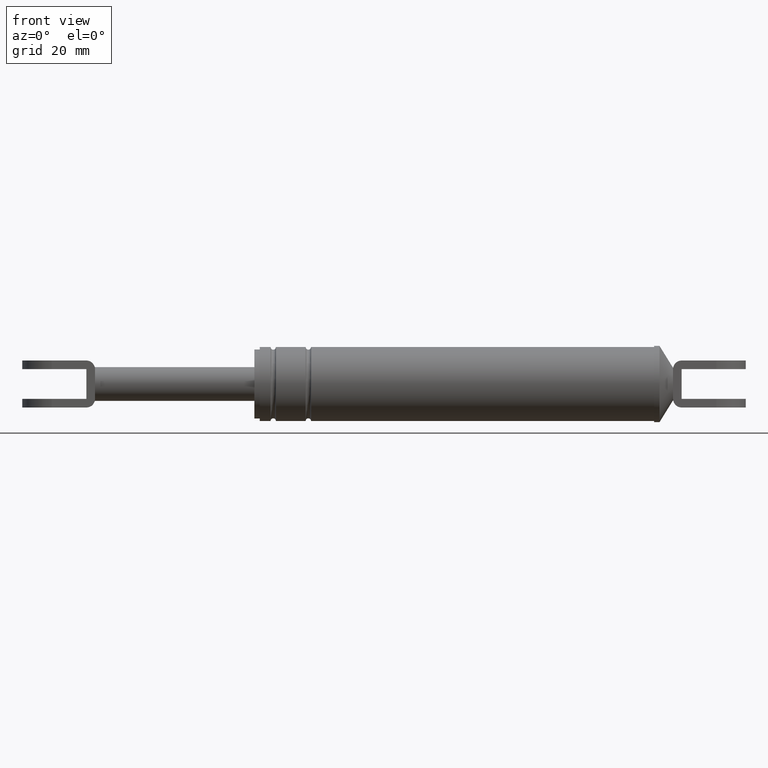
[diagram: clean part render]
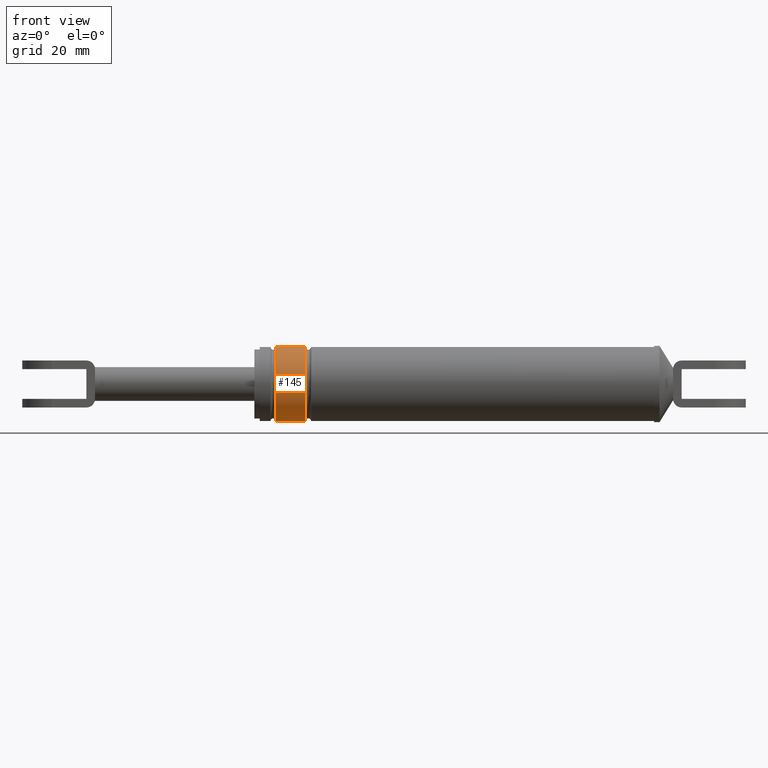
[diagram: same view with one face highlighted and labeled with its STEP entity id]
A machine part, front view. The second image highlights one B-rep face of the part: STEP entity #145.
In plain terms, the highlighted cylindrical surface (partial cylindrical patch) has radius 13.7 mm, axis along (-1, 0, 0).
Its self-contained STEP definition (entity closure, byte-faithful):
#145=ADVANCED_FACE('',(#513),#512,.T.);
#512=CYLINDRICAL_SURFACE('',#1482,1.37000000000E+001);
#513=FACE_OUTER_BOUND('',#1483,.T.);
#1479=CARTESIAN_POINT('',(1.71231797029E+002,6.37158320696E-015,1.19820542859E+002));
#1480=DIRECTION('',(-1.00000000000E+000,1.46694769862E-015,3.54452212500E-031));
#1481=DIRECTION('',(1.03669887834E-030,4.65079066202E-016,1.00000000000E+000));
#1482=AXIS2_PLACEMENT_3D('',#1479,#1480,#1481);
#1483=EDGE_LOOP('',(#2129,#2130,#2131,#2132));
#2129=ORIENTED_EDGE('',*,*,#2366,.T.);
#2130=ORIENTED_EDGE('',*,*,#2363,.T.);
#2131=ORIENTED_EDGE('',*,*,#2362,.F.);
#2132=ORIENTED_EDGE('',*,*,#2365,.F.);
#2362=EDGE_CURVE('',#2964,#2957,#2977,.T.);
#2363=EDGE_CURVE('',#2983,#2957,#2984,.T.);
#2365=EDGE_CURVE('',#2990,#2964,#2997,.T.);
#2366=EDGE_CURVE('',#2990,#2983,#3003,.T.);
#2957=VERTEX_POINT('',#3801);
#2964=VERTEX_POINT('',#3807);
#2977=CIRCLE('',#3822,1.37000000000E+001);
#2983=VERTEX_POINT('',#3823);
#2984=(BOUNDED_CURVE() B_SPLINE_CURVE(1,(#3824,#3825),.UNSPECIFIED.,.F.,.F.) B_SPLINE_CURVE_WITH_KNOTS((2,2),(8.33333343261E-002,9.16666667006E-001),.UNSPECIFIED.) CURVE() GEOMETRIC_REPRESENTATION_ITEM() RATIONAL_B_SPLINE_CURVE((1.00000000000E+000,1.00000000000E+000)) REPRESENTATION_ITEM('') );
#2990=VERTEX_POINT('',#3826);
#2997=(BOUNDED_CURVE() B_SPLINE_CURVE(1,(#3831,#3832),.UNSPECIFIED.,.F.,.F.) B_SPLINE_CURVE_WITH_KNOTS((2,2),(8.33333333333E-002,9.16666666667E-001),.UNSPECIFIED.) CURVE() GEOMETRIC_REPRESENTATION_ITEM() RATIONAL_B_SPLINE_CURVE((7.50000000000E-001,7.50000000000E-001)) REPRESENTATION_ITEM('') );
#3003=CIRCLE('',#3836,1.37000000000E+001);
#3801=CARTESIAN_POINT('',(1.72331797029E+002,2.30926389122E-014,1.33520542859E+002));
#3807=CARTESIAN_POINT('',(1.72331797029E+002,7.52689430633E-015,1.06120542859E+002));
#3819=CARTESIAN_POINT('',(1.72331797029E+002,1.12117697108E-014,1.19820542859E+002));
#3820=DIRECTION('',(-1.00000000000E+000,0.00000000000E+000,0.00000000000E+000));
#3821=DIRECTION('',(-0.00000000000E+000,-8.35518852861E-016,-1.00000000000E+000));
#3822=AXIS2_PLACEMENT_3D('',#3819,#3820,#3821);
#3823=CARTESIAN_POINT('',(1.83331797029E+002,-5.32907051820E-015,1.33520542859E+002));
#3824=CARTESIAN_POINT('',(1.83331797016E+002,-5.00690072020E-015,1.33520542859E+002));
#3825=CARTESIAN_POINT('',(1.72331797024E+002,1.11295239520E-014,1.33520542859E+002));
#3826=CARTESIAN_POINT('',(1.83331797029E+002,7.52689430633E-015,1.06120542859E+002));
#3831=CARTESIAN_POINT('',(1.83331797029E+002,-1.85037170771E-014,1.06120542859E+002));
#3832=CARTESIAN_POINT('',(1.72331797029E+002,-2.22044604925E-015,1.06120542859E+002));
#3833=CARTESIAN_POINT('',(1.83331797029E+002,1.12117697108E-014,1.19820542859E+002));
#3834=DIRECTION('',(-1.00000000000E+000,1.46694769862E-015,1.38016011913E-030));
#3835=DIRECTION('',(-2.60582257749E-030,-8.35518852861E-016,-1.00000000000E+000));
#3836=AXIS2_PLACEMENT_3D('',#3833,#3834,#3835);